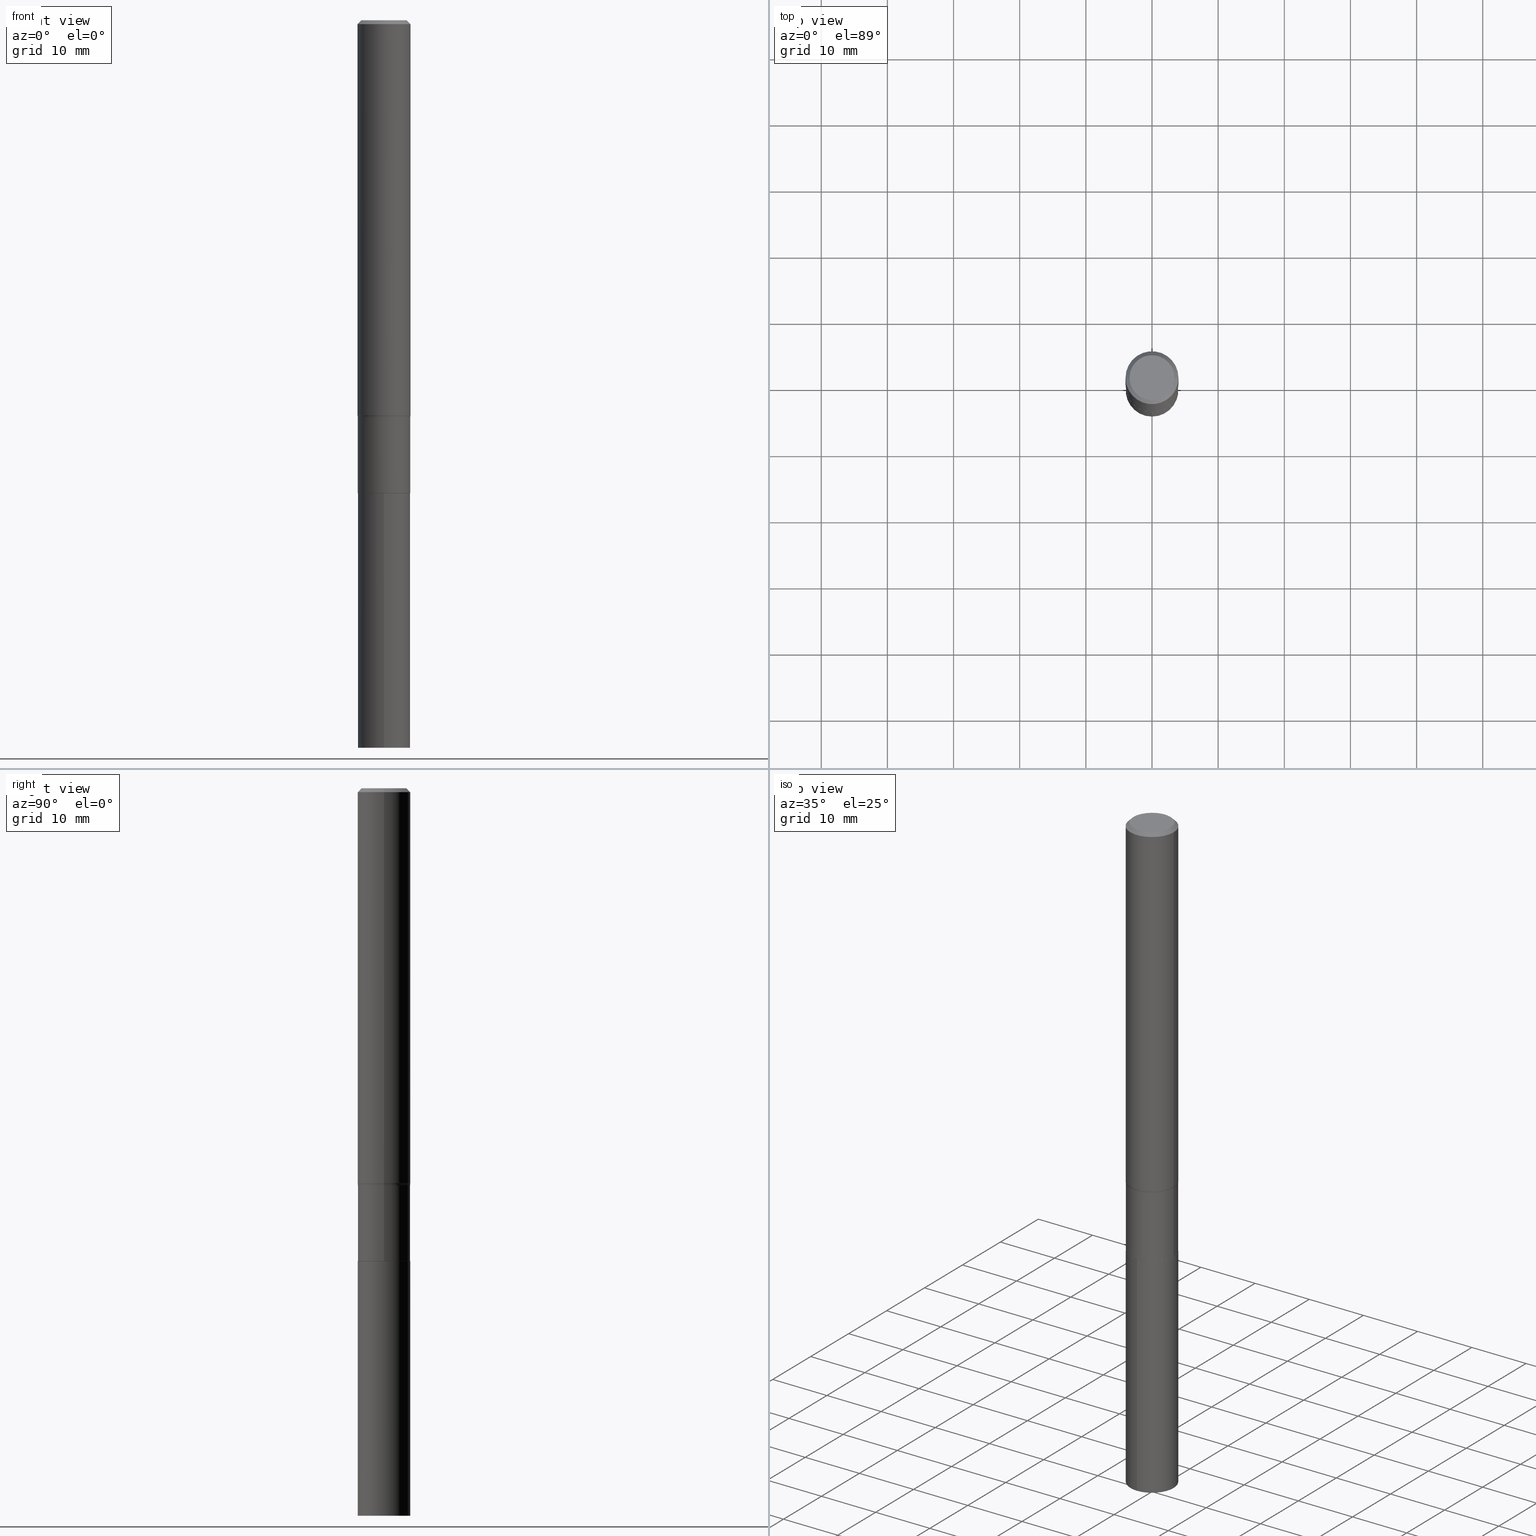
[diagram: canonical four-view strip — front | top / right | iso, engineering-drawing reading convention]
A machine part, canonical four-view strip (front | top / right | iso — engineering-drawing reading convention). The complete STEP part file that produces these views, byte-faithful:
ISO-10303-21;
HEADER;
FILE_DESCRIPTION (( 'STEP AP203' ),
    '1' );
FILE_NAME ('58895.STEP',
    '2024-04-19T14:48:45',
    ( '' ),
    ( '' ),
    'SwSTEP 2.0',
    'SolidWorks 2023',
    '' );
FILE_SCHEMA (( 'CONFIG_CONTROL_DESIGN' ));
ENDSEC;

DATA;
#1 = ORIENTED_EDGE ( 'NONE', *, *, #207, .F. ) ;
#2 = ORIENTED_EDGE ( 'NONE', *, *, #23, .T. ) ;
#3 = CIRCLE ( 'NONE', #120, 0.1575000000000003064 ) ;
#4 = APPLICATION_PROTOCOL_DEFINITION ( 'international standard', 'config_control_design', 1994, #368 ) ;
#5 = SECURITY_CLASSIFICATION_LEVEL ( 'unclassified' ) ;
#6 = ORIENTED_EDGE ( 'NONE', *, *, #52, .T. ) ;
#7 = CALENDAR_DATE ( 2024, 19, 4 ) ;
#8 = EDGE_CURVE ( 'NONE', #157, #184, #382, .T. ) ;
#9 = VERTEX_POINT ( 'NONE', #51 ) ;
#10 = EDGE_CURVE ( 'NONE', #126, #303, #284, .T. ) ;
#11 = AXIS2_PLACEMENT_3D ( 'NONE', #57, #62, #133 ) ;
#12 = AXIS2_PLACEMENT_3D ( 'NONE', #328, #434, #111 ) ;
#13 = DIRECTION ( 'NONE',  ( -2.445468806185136597E-29, 3.491481338843145583E-15, 1.000000000000000000 ) ) ;
#14 = DIRECTION ( 'NONE',  ( 1.000000000000000000, -6.982962677686266711E-15, 4.876170806578254279E-29 ) ) ;
#15 = CC_DESIGN_PERSON_AND_ORGANIZATION_ASSIGNMENT ( #370, #336, ( #134 ) ) ;
#16 = CARTESIAN_POINT ( 'NONE',  ( 5.777420054612412346E-31, -8.248624663016970443E-17, -0.02362500000000010772 ) ) ;
#17 = AXIS2_PLACEMENT_3D ( 'NONE', #124, #264, #227 ) ;
#18 = DIRECTION ( 'NONE',  ( -2.445468806185136597E-29, 3.491481338843145583E-15, 1.000000000000000000 ) ) ;
#19 = AXIS2_PLACEMENT_3D ( 'NONE', #232, #386, #64 ) ;
#20 = CARTESIAN_POINT ( 'NONE',  ( 0.000000000000000000, 0.000000000000000000, 0.000000000000000000 ) ) ;
#21 = CARTESIAN_POINT ( 'NONE',  ( -1.002970424325032604E-46, 1.431975951230895391E-32, 4.101342130344482109E-18 ) ) ;
#22 = DIRECTION ( 'NONE',  ( 1.000000000000000000, -6.982962677686267499E-15, 4.876176775795935232E-29 ) ) ;
#23 = EDGE_CURVE ( 'NONE', #184, #157, #86, .T. ) ;
#24 = LINE ( 'NONE', #350, #462 ) ;
#25 = DIRECTION ( 'NONE',  ( 0.7071067811865456854, -7.319954787623249734E-15, -0.7071067811865493491 ) ) ;
#26 = AXIS2_PLACEMENT_3D ( 'NONE', #164, #201, #171 ) ;
#27 = FACE_OUTER_BOUND ( 'NONE', #440, .T. ) ;
#28 = APPROVAL_PERSON_ORGANIZATION ( #115, #31, #406 ) ;
#29 = PERSON_AND_ORGANIZATION ( #192, #96 ) ;
#30 = CARTESIAN_POINT ( 'NONE',  ( 0.1575000000000001676, -1.099816621735588269E-15, 7.679978421878606441E-30 ) ) ;
#31 = APPROVAL ( #439, 'UNSPECIFIED' ) ;
#32 = PLANE ( 'NONE',  #391 ) ;
#33 = VERTEX_POINT ( 'NONE', #119 ) ;
#34 = DIRECTION ( 'NONE',  ( -2.445468806185136877E-29, 3.491481338843145188E-15, 1.000000000000000000 ) ) ;
#35 = CONICAL_SURFACE ( 'NONE', #94, 0.1575000000000000011, 0.7853981633974457255 ) ;
#36 = EDGE_LOOP ( 'NONE', ( #441, #247, #231, #251 ) ) ;
#37 = AXIS2_PLACEMENT_3D ( 'NONE', #268, #280, #199 ) ;
#38 = DIRECTION ( 'NONE',  ( -2.445468806185136877E-29, 3.491481338843145188E-15, 1.000000000000000000 ) ) ;
#39 = ORIENTED_EDGE ( 'NONE', *, *, #300, .F. ) ;
#40 = EDGE_LOOP ( 'NONE', ( #374, #330 ) ) ;
#41 = LOCAL_TIME ( 10, 48, 45.00000000000000000, #188 ) ;
#42 = CALENDAR_DATE ( 2024, 19, 4 ) ;
#43 =( GEOMETRIC_REPRESENTATION_CONTEXT ( 3 ) GLOBAL_UNCERTAINTY_ASSIGNED_CONTEXT ( ( #257 ) ) GLOBAL_UNIT_ASSIGNED_CONTEXT ( ( #121, #85, #150 ) ) REPRESENTATION_CONTEXT ( 'NONE', 'WORKASPACE' ) );
#44 = DIRECTION ( 'NONE',  ( -2.445468806185136597E-29, 3.491481338843145583E-15, 1.000000000000000000 ) ) ;
#45 = EDGE_CURVE ( 'NONE', #72, #332, #169, .T. ) ;
#46 = COORDINATED_UNIVERSAL_TIME_OFFSET ( 5, 0, .BEHIND. ) ;
#47 = DIRECTION ( 'NONE',  ( -2.445575912217053576E-29, 3.491327956909343403E-15, 1.000000000000000000 ) ) ;
#48 = DIRECTION ( 'NONE',  ( -2.445468806185136597E-29, 3.491481338843145583E-15, 1.000000000000000000 ) ) ;
#49 = CIRCLE ( 'NONE', #419, 0.1557499999999999996 ) ;
#50 = VECTOR ( 'NONE', #25, 39.37007874015748143 ) ;
#51 = CARTESIAN_POINT ( 'NONE',  ( 0.1338749999999999940, -1.040731925365424925E-15, 4.101342130351390035E-18 ) ) ;
#52 = EDGE_CURVE ( 'NONE', #33, #221, #49, .T. ) ;
#53 = DIRECTION ( 'NONE',  ( 1.000000000000000000, -6.982962677686265922E-15, 0.000000000000000000 ) ) ;
#54 = EDGE_CURVE ( 'NONE', #9, #217, #344, .T. ) ;
#55 = DIRECTION ( 'NONE',  ( -2.445575912217053576E-29, 3.491327956909343403E-15, 1.000000000000000000 ) ) ;
#56 = AXIS2_PLACEMENT_3D ( 'NONE', #378, #48, #413 ) ;
#57 = CARTESIAN_POINT ( 'NONE',  ( 6.883261048769305453E-29, -9.827472524441804254E-15, -2.814700000000001090 ) ) ;
#58 = MANIFOLD_SOLID_BREP ( 'Body-Move/Copy2[2]', #442 ) ;
#59 = AXIS2_PLACEMENT_3D ( 'NONE', #208, #162, #415 ) ;
#60 = LINE ( 'NONE', #138, #305 ) ;
#61 = DESIGN_CONTEXT ( 'detailed design', #387, 'design' ) ;
#62 = DIRECTION ( 'NONE',  ( -2.445468806185136597E-29, 3.491481338843145583E-15, 1.000000000000000000 ) ) ;
#63 = PLANE ( 'NONE',  #287 ) ;
#64 = DIRECTION ( 'NONE',  ( 1.000000000000000000, -6.982962677686265922E-15, 0.000000000000000000 ) ) ;
#65 = FACE_OUTER_BOUND ( 'NONE', #297, .T. ) ;
#66 = CARTESIAN_POINT ( 'NONE',  ( -0.1575000000000001676, 1.119104808822158984E-15, -7.747322767151485392E-30 ) ) ;
#67 = AXIS2_PLACEMENT_3D ( 'NONE', #128, #55, #452 ) ;
#68 = CARTESIAN_POINT ( 'NONE',  ( 6.883261048769304332E-29, -9.827472524441802676E-15, -2.814700000000000646 ) ) ;
#69 = DATE_AND_TIME ( #241, #401 ) ;
#70 = CARTESIAN_POINT ( 'NONE',  ( 0.000000000000000000, 0.000000000000000000, 0.000000000000000000 ) ) ;
#71 = ORIENTED_EDGE ( 'NONE', *, *, #320, .T. ) ;
#72 = VERTEX_POINT ( 'NONE', #343 ) ;
#73 = PERSON_AND_ORGANIZATION_ROLE ( 'creator' ) ;
#74 = DIRECTION ( 'NONE',  ( -2.445468806185136597E-29, 3.491481338843145583E-15, 1.000000000000000000 ) ) ;
#75 = AXIS2_PLACEMENT_3D ( 'NONE', #411, #13, #14 ) ;
#76 = ORIENTED_EDGE ( 'NONE', *, *, #426, .T. ) ;
#77 = CIRCLE ( 'NONE', #97, 0.08000000000000000167 ) ;
#78 = ADVANCED_FACE ( 'NONE', ( #372 ), #35, .T. ) ;
#79 = DIRECTION ( 'NONE',  ( -2.445468806185136597E-29, 3.491481338843145583E-15, 1.000000000000000000 ) ) ;
#80 = EDGE_CURVE ( 'NONE', #81, #149, #132, .T. ) ;
#81 = VERTEX_POINT ( 'NONE', #334 ) ;
#82 = APPROVAL_DATE_TIME ( #294, #246 ) ;
#83 = ORIENTED_EDGE ( 'NONE', *, *, #8, .F. ) ;
#84 = DATE_AND_TIME ( #42, #353 ) ;
#85 =( NAMED_UNIT ( * ) PLANE_ANGLE_UNIT ( ) SI_UNIT ( $, .RADIAN. ) );
#86 = CIRCLE ( 'NONE', #252, 0.1575000000000000011 ) ;
#87 = CIRCLE ( 'NONE', #12, 0.1562500000000000000 ) ;
#88 = DIRECTION ( 'NONE',  ( -2.445468806185136597E-29, 3.491481338843145583E-15, 1.000000000000000000 ) ) ;
#89 = AXIS2_PLACEMENT_3D ( 'NONE', #210, #139, #461 ) ;
#90 = DIRECTION ( 'NONE',  ( -2.445468806185136597E-29, 3.491481338843145583E-15, 1.000000000000000000 ) ) ;
#91 = CARTESIAN_POINT ( 'NONE',  ( 1.598269014952904770E-31, -3.026400029001514560E-14, -4.330700000000001104 ) ) ;
#92 = ADVANCED_FACE ( 'NONE', ( #99 ), #98, .F. ) ;
#93 = DIRECTION ( 'NONE',  ( -2.445468806185136597E-29, 3.491481338843145583E-15, 1.000000000000000000 ) ) ;
#94 = AXIS2_PLACEMENT_3D ( 'NONE', #16, #307, #379 ) ;
#95 = CARTESIAN_POINT ( 'NONE',  ( -1.167599102187429524E-31, -1.970141480086787471E-14, -2.814700000000001090 ) ) ;
#96 = ORGANIZATION ( 'UNSPECIFIED', 'UNSPECIFIED', '' ) ;
#97 = AXIS2_PLACEMENT_3D ( 'NONE', #381, #348, #424 ) ;
#98 = PLANE ( 'NONE',  #177 ) ;
#99 = FACE_OUTER_BOUND ( 'NONE', #364, .T. ) ;
#100 = CC_DESIGN_SECURITY_CLASSIFICATION ( #455, ( #134 ) ) ;
#101 = DIRECTION ( 'NONE',  ( -2.445468806185136597E-29, 3.491481338843145583E-15, 1.000000000000000000 ) ) ;
#102 = CIRCLE ( 'NONE', #19, 0.1557499999999999996 ) ;
#103 = ORIENTED_EDGE ( 'NONE', *, *, #396, .F. ) ;
#104 = VERTEX_POINT ( 'NONE', #242 ) ;
#105 = DATE_TIME_ROLE ( 'creation_date' ) ;
#106 = CYLINDRICAL_SURFACE ( 'NONE', #186, 0.1562499999999999722 ) ;
#107 = ADVANCED_FACE ( 'NONE', ( #383 ), #345, .F. ) ;
#108 = CC_DESIGN_DATE_AND_TIME_ASSIGNMENT ( #84, #218, ( #455 ) ) ;
#109 = DIRECTION ( 'NONE',  ( -1.000000000000000000, 6.982962677686265922E-15, 0.000000000000000000 ) ) ;
#110 = ORIENTED_EDGE ( 'NONE', *, *, #233, .T. ) ;
#111 = DIRECTION ( 'NONE',  ( -6.982962677686265133E-15, -1.000000000000000000, 3.496765431890256920E-15 ) ) ;
#112 = ORIENTED_EDGE ( 'NONE', *, *, #445, .T. ) ;
#113 = VECTOR ( 'NONE', #38, 39.37007874015748143 ) ;
#114 = APPROVAL_ROLE ( '' ) ;
#115 = PERSON_AND_ORGANIZATION ( #192, #96 ) ;
#116 = EDGE_LOOP ( 'NONE', ( #400, #39, #112, #292 ) ) ;
#117 = CARTESIAN_POINT ( 'NONE',  ( 0.000000000000000000, 0.000000000000000000, 0.000000000000000000 ) ) ;
#118 = ORIENTED_EDGE ( 'NONE', *, *, #144, .F. ) ;
#119 = CARTESIAN_POINT ( 'NONE',  ( -0.1557499999999999996, -8.718152986321335833E-15, -2.814700000000001090 ) ) ;
#120 = AXIS2_PLACEMENT_3D ( 'NONE', #322, #321, #290 ) ;
#121 =( CONVERSION_BASED_UNIT ( 'INCH', #331 ) LENGTH_UNIT ( ) NAMED_UNIT ( #311 ) );
#122 = ORIENTED_EDGE ( 'NONE', *, *, #54, .T. ) ;
#123 = CC_DESIGN_PERSON_AND_ORGANIZATION_ASSIGNMENT ( #29, #458, ( #134 ) ) ;
#124 = CARTESIAN_POINT ( 'NONE',  ( 6.882038314366211531E-29, -9.825726783772380384E-15, -2.814200000000000479 ) ) ;
#125 = PRODUCT_DEFINITION_SHAPE ( 'NONE', 'NONE',  #195 ) ;
#126 = VERTEX_POINT ( 'NONE', #319 ) ;
#127 = VECTOR ( 'NONE', #289, 39.37007874015748143 ) ;
#128 = CARTESIAN_POINT ( 'NONE',  ( 6.883261048769304332E-29, -9.827472524441802676E-15, -2.814700000000000646 ) ) ;
#129 = DIRECTION ( 'NONE',  ( -2.445468806185136597E-29, 3.491481338843145583E-15, 1.000000000000000000 ) ) ;
#130 = FACE_OUTER_BOUND ( 'NONE', #404, .T. ) ;
#131 = CARTESIAN_POINT ( 'NONE',  ( 5.783044632866612545E-29, -8.256655070096271445E-15, -2.364800000000000235 ) ) ;
#132 = CIRCLE ( 'NONE', #316, 0.1575000000000003064 ) ;
#133 = DIRECTION ( 'NONE',  ( 1.000000000000000000, -6.982962677686265922E-15, 0.000000000000000000 ) ) ;
#134 = PRODUCT_DEFINITION_FORMATION_WITH_SPECIFIED_SOURCE ( 'ANY', '', #183, .NOT_KNOWN. ) ;
#135 = APPROVAL ( #392, 'UNSPECIFIED' ) ;
#136 = DIRECTION ( 'NONE',  ( 0.7071067811860403118, -2.468850131076945266E-15, 0.7071067811870545006 ) ) ;
#137 = CC_DESIGN_PERSON_AND_ORGANIZATION_ASSIGNMENT ( #153, #373, ( #455 ) ) ;
#138 = CARTESIAN_POINT ( 'NONE',  ( -1.091087918388410345E-15, -0.1562500000000098532, -2.814699999999999758 ) ) ;
#139 = DIRECTION ( 'NONE',  ( -2.445575912217053576E-29, 3.491327956909343403E-15, 1.000000000000000000 ) ) ;
#140 = AXIS2_PLACEMENT_3D ( 'NONE', #91, #454, #236 ) ;
#141 = CARTESIAN_POINT ( 'NONE',  ( -0.1575000000000000011, 1.017330375105417295E-15, -0.02362500000000010772 ) ) ;
#142 = CIRCLE ( 'NONE', #333, 0.1562499999999999445 ) ;
#143 = ORIENTED_EDGE ( 'NONE', *, *, #10, .F. ) ;
#144 = EDGE_CURVE ( 'NONE', #437, #104, #359, .T. ) ;
#145 = DIRECTION ( 'NONE',  ( 1.000000000000000000, -6.982962677686265133E-15, 0.000000000000000000 ) ) ;
#146 = ORIENTED_EDGE ( 'NONE', *, *, #207, .T. ) ;
#147 = DIRECTION ( 'NONE',  ( 2.445468806185136597E-29, -3.491481338843145583E-15, -1.000000000000000000 ) ) ;
#148 = ADVANCED_FACE ( 'NONE', ( #27 ), #198, .T. ) ;
#149 = VERTEX_POINT ( 'NONE', #276 ) ;
#150 =( NAMED_UNIT ( * ) SI_UNIT ( $, .STERADIAN. ) SOLID_ANGLE_UNIT ( ) );
#151 = VERTEX_POINT ( 'NONE', #197 ) ;
#152 = VECTOR ( 'NONE', #459, 39.37007874015748143 ) ;
#153 = PERSON_AND_ORGANIZATION ( #192, #96 ) ;
#154 = ADVANCED_FACE ( 'NONE', ( #240 ), #234, .T. ) ;
#155 = CARTESIAN_POINT ( 'NONE',  ( 5.777420054612412346E-31, -8.248624663016970443E-17, -0.02362500000000010772 ) ) ;
#156 = CIRCLE ( 'NONE', #259, 0.1562500000000000000 ) ;
#157 = VERTEX_POINT ( 'NONE', #457 ) ;
#158 = TOROIDAL_SURFACE ( 'NONE', #191, 0.2362499999999999323, 0.08000000000000000167 ) ;
#159 = ORIENTED_EDGE ( 'NONE', *, *, #376, .F. ) ;
#160 = EDGE_CURVE ( 'NONE', #221, #126, #24, .T. ) ;
#161 = ORIENTED_EDGE ( 'NONE', *, *, #389, .F. ) ;
#162 = DIRECTION ( 'NONE',  ( 7.105427357601001859E-15, 1.000000000000000000, -3.491481338843145583E-15 ) ) ;
#163 = CC_DESIGN_APPROVAL ( #31, ( #195 ) ) ;
#164 = CARTESIAN_POINT ( 'NONE',  ( 6.883261048769304332E-29, -9.827472524441802676E-15, -2.814700000000000646 ) ) ;
#165 = DIRECTION ( 'NONE',  ( 6.982962677686265922E-15, 1.000000000000000000, -3.491327956909343403E-15 ) ) ;
#166 =( LENGTH_UNIT ( ) NAMED_UNIT ( * ) SI_UNIT ( $, .METRE. ) );
#167 = DIRECTION ( 'NONE',  ( 1.000000000000000000, -6.982962677686265922E-15, 4.876176775795935793E-29 ) ) ;
#168 = CARTESIAN_POINT ( 'NONE',  ( -0.1562499999999999722, 1.110223024625156343E-15, -7.685836078523288357E-30 ) ) ;
#169 = CIRCLE ( 'NONE', #399, 0.1562500000000000000 ) ;
#170 = COORDINATED_UNIVERSAL_TIME_OFFSET ( 5, 0, .BEHIND. ) ;
#171 = DIRECTION ( 'NONE',  ( -6.982962677686265133E-15, -1.000000000000000000, 3.496765431890256920E-15 ) ) ;
#172 = CARTESIAN_POINT ( 'NONE',  ( 0.000000000000000000, 0.000000000000000000, 0.000000000000000000 ) ) ;
#173 = DIRECTION ( 'NONE',  ( 1.000000000000000000, -6.982962677686266711E-15, 4.876176775795936353E-29 ) ) ;
#174 = DIRECTION ( 'NONE',  ( -2.445575912217053576E-29, 3.491327956909343403E-15, 1.000000000000000000 ) ) ;
#175 = CARTESIAN_POINT ( 'NONE',  ( 5.777420054612412346E-31, -8.248624663016970443E-17, -0.02362500000000010772 ) ) ;
#176 = ORIENTED_EDGE ( 'NONE', *, *, #283, .F. ) ;
#177 = AXIS2_PLACEMENT_3D ( 'NONE', #95, #267, #167 ) ;
#178 = FACE_OUTER_BOUND ( 'NONE', #261, .T. ) ;
#179 = AXIS2_PLACEMENT_3D ( 'NONE', #428, #129, #317 ) ;
#180 = EDGE_LOOP ( 'NONE', ( #410, #245, #182, #214 ) ) ;
#181 = DIRECTION ( 'NONE',  ( 1.000000000000000000, -6.982962677686266711E-15, 4.876176775795936353E-29 ) ) ;
#182 = ORIENTED_EDGE ( 'NONE', *, *, #389, .T. ) ;
#183 = PRODUCT ( '58895', '58895', '', ( #339 ) ) ;
#184 = VERTEX_POINT ( 'NONE', #279 ) ;
#185 = VERTEX_POINT ( 'NONE', #423 ) ;
#186 = AXIS2_PLACEMENT_3D ( 'NONE', #70, #79, #173 ) ;
#187 = DIRECTION ( 'NONE',  ( 1.000000000000000000, -6.982962677686272233E-15, 0.000000000000000000 ) ) ;
#188 = COORDINATED_UNIVERSAL_TIME_OFFSET ( 5, 0, .BEHIND. ) ;
#189 = ORIENTED_EDGE ( 'NONE', *, *, #426, .F. ) ;
#190 = SHAPE_DEFINITION_REPRESENTATION ( #125, #278 ) ;
#191 = AXIS2_PLACEMENT_3D ( 'NONE', #213, #101, #358 ) ;
#192 = PERSON ( 'UNSPECIFIED', 'UNSPECIFIED', 'UNSPECIFIED', ('UNSPECIFIED'), ('UNSPECIFIED'), ('UNSPECIFIED') ) ;
#193 = DIRECTION ( 'NONE',  ( 1.000000000000000000, -6.982962677686265922E-15, 0.000000000000000000 ) ) ;
#194 = CARTESIAN_POINT ( 'NONE',  ( 6.883261048769304332E-29, -9.827472524441802676E-15, -2.814700000000000646 ) ) ;
#195 = PRODUCT_DEFINITION ( 'UNKNOWN', '', #134, #61 ) ;
#196 = EDGE_CURVE ( 'NONE', #151, #185, #156, .T. ) ;
#197 = CARTESIAN_POINT ( 'NONE',  ( -1.091087918388373072E-15, -0.1562500000000151268, -4.330700000000000216 ) ) ;
#198 = CONICAL_SURFACE ( 'NONE', #11, 0.1557499999999999996, 0.7853981633967311859 ) ;
#199 = DIRECTION ( 'NONE',  ( 1.000000000000000000, -6.982962677686269077E-15, 4.883557194083113462E-29 ) ) ;
#200 = APPROVAL_PERSON_ORGANIZATION ( #204, #135, #248 ) ;
#201 = DIRECTION ( 'NONE',  ( -2.445575912217053576E-29, 3.491327956909343403E-15, 1.000000000000000000 ) ) ;
#202 = DIRECTION ( 'NONE',  ( -2.445468806185136597E-29, 3.491481338843145583E-15, 1.000000000000000000 ) ) ;
#203 = LINE ( 'NONE', #420, #443 ) ;
#204 = PERSON_AND_ORGANIZATION ( #192, #96 ) ;
#205 = EDGE_CURVE ( 'NONE', #303, #104, #314, .T. ) ;
#206 = FACE_OUTER_BOUND ( 'NONE', #285, .T. ) ;
#207 = EDGE_CURVE ( 'NONE', #81, #184, #315, .T. ) ;
#208 = CARTESIAN_POINT ( 'NONE',  ( -0.2362499999999999323, -6.577997856863035829E-15, -2.364800000000000235 ) ) ;
#209 = AXIS2_PLACEMENT_3D ( 'NONE', #21, #449, #347 ) ;
#210 = CARTESIAN_POINT ( 'NONE',  ( 1.059075413169035979E-28, -1.512032570711636875E-14, -4.330700000000001104 ) ) ;
#211 = EDGE_CURVE ( 'NONE', #81, #104, #337, .T. ) ;
#212 = ORIENTED_EDGE ( 'NONE', *, *, #80, .T. ) ;
#213 = CARTESIAN_POINT ( 'NONE',  ( 5.783044632866612545E-29, -8.256655070096271445E-15, -2.364800000000000235 ) ) ;
#214 = ORIENTED_EDGE ( 'NONE', *, *, #291, .F. ) ;
#215 = CYLINDRICAL_SURFACE ( 'NONE', #421, 0.1562499999999999722 ) ;
#216 = AXIS2_PLACEMENT_3D ( 'NONE', #117, #302, #228 ) ;
#217 = VERTEX_POINT ( 'NONE', #453 ) ;
#218 = DATE_TIME_ROLE ( 'classification_date' ) ;
#219 = CARTESIAN_POINT ( 'NONE',  ( 0.1575000000000000011, -1.163014681279185964E-15, -0.02362500000000010772 ) ) ;
#220 = MANIFOLD_SOLID_BREP ( 'Body-Move/Copy2[1]', #301 ) ;
#221 = VERTEX_POINT ( 'NONE', #380 ) ;
#222 = PERSON_AND_ORGANIZATION ( #192, #96 ) ;
#223 = EDGE_LOOP ( 'NONE', ( #326, #342 ) ) ;
#224 = ORIENTED_EDGE ( 'NONE', *, *, #327, .F. ) ;
#225 = CC_DESIGN_APPROVAL ( #135, ( #134 ) ) ;
#226 = PERSON_AND_ORGANIZATION ( #192, #96 ) ;
#227 = DIRECTION ( 'NONE',  ( 1.000000000000000000, -6.982962677686262766E-15, 0.000000000000000000 ) ) ;
#228 = DIRECTION ( 'NONE',  ( 1.000000000000000000, 0.000000000000000000, 0.000000000000000000 ) ) ;
#229 = ORIENTED_EDGE ( 'NONE', *, *, #211, .T. ) ;
#230 = AXIS2_PLACEMENT_3D ( 'NONE', #20, #384, #422 ) ;
#231 = ORIENTED_EDGE ( 'NONE', *, *, #8, .T. ) ;
#232 = CARTESIAN_POINT ( 'NONE',  ( 6.883261048769305453E-29, -9.827472524441804254E-15, -2.814700000000001090 ) ) ;
#233 = EDGE_CURVE ( 'NONE', #221, #33, #102, .T. ) ;
#234 = CYLINDRICAL_SURFACE ( 'NONE', #26, 0.1562500000000000000 ) ;
#235 = AXIS2_PLACEMENT_3D ( 'NONE', #175, #147, #109 ) ;
#236 = DIRECTION ( 'NONE',  ( -6.982962677686265922E-15, -1.000000000000000000, 3.491327956909343403E-15 ) ) ;
#237 = PRODUCT_RELATED_PRODUCT_CATEGORY ( 'detail', '', ( #183 ) ) ;
#238 = EDGE_CURVE ( 'NONE', #33, #303, #203, .T. ) ;
#239 = COORDINATED_UNIVERSAL_TIME_OFFSET ( 5, 0, .BEHIND. ) ;
#240 = FACE_OUTER_BOUND ( 'NONE', #360, .T. ) ;
#241 = CALENDAR_DATE ( 2024, 19, 4 ) ;
#242 = CARTESIAN_POINT ( 'NONE',  ( -0.1562499999999999445, -7.930967902309169374E-15, -2.364800000000000235 ) ) ;
#243 = CYLINDRICAL_SURFACE ( 'NONE', #230, 0.1575000000000001676 ) ;
#244 = CARTESIAN_POINT ( 'NONE',  ( 5.783044632866612545E-29, -8.256655070096271445E-15, -2.364800000000000235 ) ) ;
#245 = ORIENTED_EDGE ( 'NONE', *, *, #397, .T. ) ;
#246 = APPROVAL ( #365, 'UNSPECIFIED' ) ;
#247 = ORIENTED_EDGE ( 'NONE', *, *, #396, .T. ) ;
#248 = APPROVAL_ROLE ( '' ) ;
#249 = CARTESIAN_POINT ( 'NONE',  ( -1.091087918388410345E-15, -0.1562500000000098532, -2.814699999999999758 ) ) ;
#250 = CARTESIAN_POINT ( 'NONE',  ( 0.1562499999999999722, -1.091087918388478976E-15, 7.619026212181148976E-30 ) ) ;
#251 = ORIENTED_EDGE ( 'NONE', *, *, #320, .F. ) ;
#252 = AXIS2_PLACEMENT_3D ( 'NONE', #155, #90, #53 ) ;
#253 = LINE ( 'NONE', #219, #50 ) ;
#254 = VECTOR ( 'NONE', #34, 39.37007874015748143 ) ;
#255 = ORIENTED_EDGE ( 'NONE', *, *, #205, .T. ) ;
#256 = PERSON_AND_ORGANIZATION_ROLE ( 'design_owner' ) ;
#257 = UNCERTAINTY_MEASURE_WITH_UNIT (LENGTH_MEASURE( 1.000000000000000082E-05 ), #121, 'distance_accuracy_value', 'NONE');
#258 = ORIENTED_EDGE ( 'NONE', *, *, #327, .T. ) ;
#259 = AXIS2_PLACEMENT_3D ( 'NONE', #390, #385, #269 ) ;
#260 = EDGE_CURVE ( 'NONE', #217, #9, #266, .T. ) ;
#261 = EDGE_LOOP ( 'NONE', ( #288, #122 ) ) ;
#262 = CONICAL_SURFACE ( 'NONE', #296, 0.1557499999999999996, 0.7853981633967311859 ) ;
#263 = ADVANCED_FACE ( 'NONE', ( #206 ), #352, .T. ) ;
#264 = DIRECTION ( 'NONE',  ( -2.445468806185136597E-29, 3.491481338843145583E-15, 1.000000000000000000 ) ) ;
#265 = EDGE_LOOP ( 'NONE', ( #394, #255, #118, #161 ) ) ;
#266 = CIRCLE ( 'NONE', #209, 0.1338749999999999940 ) ;
#267 = DIRECTION ( 'NONE',  ( -2.438088387897960049E-29, 3.491481338843145188E-15, 1.000000000000000000 ) ) ;
#268 = CARTESIAN_POINT ( 'NONE',  ( 5.783044632866612545E-29, -8.256655070096271445E-15, -2.364800000000000235 ) ) ;
#269 = DIRECTION ( 'NONE',  ( -6.982962677686265133E-15, -1.000000000000000000, 3.496765431890256920E-15 ) ) ;
#270 = FACE_OUTER_BOUND ( 'NONE', #468, .T. ) ;
#271 = DIRECTION ( 'NONE',  ( 1.000000000000000000, -6.982962677686265922E-15, 0.000000000000000000 ) ) ;
#272 = ADVANCED_FACE ( 'NONE', ( #130 ), #262, .T. ) ;
#273 = VECTOR ( 'NONE', #310, 39.37007874015748143 ) ;
#274 = FACE_OUTER_BOUND ( 'NONE', #433, .T. ) ;
#275 = LOCAL_TIME ( 10, 48, 45.00000000000000000, #377 ) ;
#276 = CARTESIAN_POINT ( 'NONE',  ( 0.1575000000000003064, -9.307287946322105825E-15, -2.350713215413017476 ) ) ;
#277 = ADVANCED_FACE ( 'NONE', ( #465 ), #318, .T. ) ;
#278 = ADVANCED_BREP_SHAPE_REPRESENTATION ( '58895', ( #220, #58, #216 ), #43 ) ;
#279 = CARTESIAN_POINT ( 'NONE',  ( -0.1575000000000000011, -3.025873976786183506E-15, -0.02362500000000010772 ) ) ;
#280 = DIRECTION ( 'NONE',  ( -2.445468806185136597E-29, 3.491481338843145583E-15, 1.000000000000000000 ) ) ;
#281 = DATE_AND_TIME ( #464, #341 ) ;
#282 = LINE ( 'NONE', #141, #127 ) ;
#283 = EDGE_CURVE ( 'NONE', #185, #72, #286, .T. ) ;
#284 = CIRCLE ( 'NONE', #17, 0.1562500000000000000 ) ;
#285 = EDGE_LOOP ( 'NONE', ( #176, #363, #76, #304 ) ) ;
#286 = LINE ( 'NONE', #398, #152 ) ;
#287 = AXIS2_PLACEMENT_3D ( 'NONE', #68, #456, #165 ) ;
#288 = ORIENTED_EDGE ( 'NONE', *, *, #260, .T. ) ;
#289 = DIRECTION ( 'NONE',  ( -0.7071067811865456854, 2.468850131082237733E-15, -0.7071067811865493491 ) ) ;
#290 = DIRECTION ( 'NONE',  ( 1.000000000000000000, -6.982962677686272233E-15, 0.000000000000000000 ) ) ;
#291 = EDGE_CURVE ( 'NONE', #104, #437, #142, .T. ) ;
#292 = ORIENTED_EDGE ( 'NONE', *, *, #144, .T. ) ;
#293 = VECTOR ( 'NONE', #427, 39.37007874015748143 ) ;
#294 = DATE_AND_TIME ( #7, #41 ) ;
#295 = APPLICATION_PROTOCOL_DEFINITION ( 'international standard', 'config_control_design', 1994, #387 ) ;
#296 = AXIS2_PLACEMENT_3D ( 'NONE', #417, #93, #271 ) ;
#297 = EDGE_LOOP ( 'NONE', ( #407, #146, #83, #224 ) ) ;
#298 = CARTESIAN_POINT ( 'NONE',  ( 5.748595840579696355E-29, -8.207471324586519134E-15, -2.350713215413017476 ) ) ;
#299 = ORIENTED_EDGE ( 'NONE', *, *, #160, .F. ) ;
#300 = EDGE_CURVE ( 'NONE', #149, #81, #3, .T. ) ;
#301 = CLOSED_SHELL ( 'NONE', ( #154, #107, #263, #416 ) ) ;
#302 = DIRECTION ( 'NONE',  ( 0.000000000000000000, 0.000000000000000000, 1.000000000000000000 ) ) ;
#303 = VERTEX_POINT ( 'NONE', #393 ) ;
#304 = ORIENTED_EDGE ( 'NONE', *, *, #45, .F. ) ;
#305 = VECTOR ( 'NONE', #174, 39.37007874015748143 ) ;
#306 = ORIENTED_EDGE ( 'NONE', *, *, #283, .T. ) ;
#307 = DIRECTION ( 'NONE',  ( 2.445468806185136597E-29, -3.491481338843145583E-15, -1.000000000000000000 ) ) ;
#308 = CC_DESIGN_APPROVAL ( #246, ( #455 ) ) ;
#309 = DIRECTION ( 'NONE',  ( -0.7071067811860403118, 7.493145998868519270E-15, 0.7071067811870545006 ) ) ;
#310 = DIRECTION ( 'NONE',  ( -2.445468806185136877E-29, 3.491481338843145188E-15, 1.000000000000000000 ) ) ;
#311 = DIMENSIONAL_EXPONENTS ( 1.000000000000000000, 0.000000000000000000, 0.000000000000000000, 0.000000000000000000, 0.000000000000000000, 0.000000000000000000, 0.000000000000000000 ) ;
#312 = EDGE_CURVE ( 'NONE', #185, #151, #325, .T. ) ;
#313 = CALENDAR_DATE ( 2024, 19, 4 ) ;
#314 = LINE ( 'NONE', #168, #293 ) ;
#315 = LINE ( 'NONE', #66, #273 ) ;
#316 = AXIS2_PLACEMENT_3D ( 'NONE', #298, #44, #187 ) ;
#317 = DIRECTION ( 'NONE',  ( 1.000000000000000000, -6.982962677686262766E-15, 0.000000000000000000 ) ) ;
#318 = CONICAL_SURFACE ( 'NONE', #235, 0.1575000000000000011, 0.7853981633974457255 ) ;
#319 = CARTESIAN_POINT ( 'NONE',  ( 0.1562500000000000000, -1.091681470216085877E-14, -2.814200000000000479 ) ) ;
#320 = EDGE_CURVE ( 'NONE', #217, #184, #282, .T. ) ;
#321 = DIRECTION ( 'NONE',  ( -2.445468806185136597E-29, 3.491481338843145583E-15, 1.000000000000000000 ) ) ;
#322 = CARTESIAN_POINT ( 'NONE',  ( 5.748595840579696355E-29, -8.207471324586519134E-15, -2.350713215413017476 ) ) ;
#323 = ORIENTED_EDGE ( 'NONE', *, *, #291, .T. ) ;
#324 = DIRECTION ( 'NONE',  ( -1.000000000000000000, 6.982962677686265922E-15, -4.876176775795935793E-29 ) ) ;
#325 = CIRCLE ( 'NONE', #89, 0.1562500000000000000 ) ;
#326 = ORIENTED_EDGE ( 'NONE', *, *, #376, .T. ) ;
#327 = EDGE_CURVE ( 'NONE', #149, #157, #467, .T. ) ;
#328 = CARTESIAN_POINT ( 'NONE',  ( 6.883261048769304332E-29, -9.827472524441802676E-15, -2.814700000000000646 ) ) ;
#329 = ADVANCED_FACE ( 'NONE', ( #432 ), #106, .T. ) ;
#330 = ORIENTED_EDGE ( 'NONE', *, *, #312, .F. ) ;
#331 = LENGTH_MEASURE_WITH_UNIT ( LENGTH_MEASURE( 0.02539999999999999897 ), #166 );
#332 = VERTEX_POINT ( 'NONE', #249 ) ;
#333 = AXIS2_PLACEMENT_3D ( 'NONE', #244, #74, #145 ) ;
#334 = CARTESIAN_POINT ( 'NONE',  ( -0.1575000000000003064, -7.088366515764358375E-15, -2.350713215413017476 ) ) ;
#335 = ORIENTED_EDGE ( 'NONE', *, *, #160, .T. ) ;
#336 = PERSON_AND_ORGANIZATION_ROLE ( 'design_supplier' ) ;
#337 = CIRCLE ( 'NONE', #59, 0.08000000000000000167 ) ;
#338 = ADVANCED_FACE ( 'NONE', ( #429 ), #215, .T. ) ;
#339 = MECHANICAL_CONTEXT ( 'NONE', #368, 'mechanical' ) ;
#340 = ORIENTED_EDGE ( 'NONE', *, *, #52, .F. ) ;
#341 = LOCAL_TIME ( 10, 48, 45.00000000000000000, #239 ) ;
#342 = ORIENTED_EDGE ( 'NONE', *, *, #45, .T. ) ;
#343 = CARTESIAN_POINT ( 'NONE',  ( 1.110223024625262642E-15, 0.1562499999999901745, -2.814700000000001090 ) ) ;
#344 = CIRCLE ( 'NONE', #75, 0.1338749999999999940 ) ;
#345 = PLANE ( 'NONE',  #140 ) ;
#346 = CYLINDRICAL_SURFACE ( 'NONE', #430, 0.1575000000000001676 ) ;
#347 = DIRECTION ( 'NONE',  ( 1.000000000000000000, -6.982962677686266711E-15, 4.876170806578254279E-29 ) ) ;
#348 = DIRECTION ( 'NONE',  ( -6.982962677686266711E-15, -1.000000000000000000, 3.491481338843145583E-15 ) ) ;
#349 = ORIENTED_EDGE ( 'NONE', *, *, #445, .F. ) ;
#350 = CARTESIAN_POINT ( 'NONE',  ( 0.1557499999999999996, -1.091506896149144121E-14, -2.814700000000001090 ) ) ;
#351 = CC_DESIGN_PERSON_AND_ORGANIZATION_ASSIGNMENT ( #222, #256, ( #183 ) ) ;
#352 = CYLINDRICAL_SURFACE ( 'NONE', #67, 0.1562500000000000000 ) ;
#353 = LOCAL_TIME ( 10, 48, 45.00000000000000000, #46 ) ;
#354 = APPROVAL_DATE_TIME ( #69, #135 ) ;
#355 = DIRECTION ( 'NONE',  ( 1.000000000000000000, -6.982962677686265133E-15, 0.000000000000000000 ) ) ;
#356 = DIRECTION ( 'NONE',  ( -2.445468806185136597E-29, 3.491481338843145583E-15, 1.000000000000000000 ) ) ;
#357 = ORIENTED_EDGE ( 'NONE', *, *, #238, .T. ) ;
#358 = DIRECTION ( 'NONE',  ( 1.000000000000000000, -6.982962677686269077E-15, 4.883557194083113462E-29 ) ) ;
#359 = CIRCLE ( 'NONE', #408, 0.1562499999999999445 ) ;
#360 = EDGE_LOOP ( 'NONE', ( #446, #306, #159, #189 ) ) ;
#361 = ADVANCED_FACE ( 'NONE', ( #362 ), #158, .F. ) ;
#362 = FACE_OUTER_BOUND ( 'NONE', #116, .T. ) ;
#363 = ORIENTED_EDGE ( 'NONE', *, *, #312, .T. ) ;
#364 = EDGE_LOOP ( 'NONE', ( #371, #340 ) ) ;
#365 = APPROVAL_STATUS ( 'not_yet_approved' ) ;
#366 = ADVANCED_FACE ( 'NONE', ( #178 ), #32, .F. ) ;
#367 = CARTESIAN_POINT ( 'NONE',  ( -5.014852121625163022E-47, 7.159879756154476955E-33, 2.050671065172241055E-18 ) ) ;
#368 = APPLICATION_CONTEXT ( 'configuration controlled 3d designs of mechanical parts and assemblies' ) ;
#369 = ORIENTED_EDGE ( 'NONE', *, *, #238, .F. ) ;
#370 = PERSON_AND_ORGANIZATION ( #192, #96 ) ;
#371 = ORIENTED_EDGE ( 'NONE', *, *, #233, .F. ) ;
#372 = FACE_OUTER_BOUND ( 'NONE', #466, .T. ) ;
#373 = PERSON_AND_ORGANIZATION_ROLE ( 'classification_officer' ) ;
#374 = ORIENTED_EDGE ( 'NONE', *, *, #196, .F. ) ;
#375 = ORIENTED_EDGE ( 'NONE', *, *, #80, .F. ) ;
#376 = EDGE_CURVE ( 'NONE', #332, #72, #87, .T. ) ;
#377 = COORDINATED_UNIVERSAL_TIME_OFFSET ( 5, 0, .BEHIND. ) ;
#378 = CARTESIAN_POINT ( 'NONE',  ( 5.777420054612412346E-31, -8.248624663016970443E-17, -0.02362500000000010772 ) ) ;
#379 = DIRECTION ( 'NONE',  ( -1.000000000000000000, 6.982962677686265922E-15, 0.000000000000000000 ) ) ;
#380 = CARTESIAN_POINT ( 'NONE',  ( 0.1557499999999999996, -1.091506896149144121E-14, -2.814700000000001090 ) ) ;
#381 = CARTESIAN_POINT ( 'NONE',  ( 0.2362499999999999323, -9.906380002699651482E-15, -2.364800000000000235 ) ) ;
#382 = CIRCLE ( 'NONE', #56, 0.1575000000000000011 ) ;
#383 = FACE_OUTER_BOUND ( 'NONE', #40, .T. ) ;
#384 = DIRECTION ( 'NONE',  ( -2.445468806185136597E-29, 3.491481338843145583E-15, 1.000000000000000000 ) ) ;
#385 = DIRECTION ( 'NONE',  ( -2.445575912217053576E-29, 3.491327956909343403E-15, 1.000000000000000000 ) ) ;
#386 = DIRECTION ( 'NONE',  ( -2.445468806185136597E-29, 3.491481338843145583E-15, 1.000000000000000000 ) ) ;
#387 = APPLICATION_CONTEXT ( 'configuration controlled 3d designs of mechanical parts and assemblies' ) ;
#388 = FACE_OUTER_BOUND ( 'NONE', #223, .T. ) ;
#389 = EDGE_CURVE ( 'NONE', #126, #437, #436, .T. ) ;
#390 = CARTESIAN_POINT ( 'NONE',  ( 1.059075413169035979E-28, -1.512032570711636875E-14, -4.330700000000001104 ) ) ;
#391 = AXIS2_PLACEMENT_3D ( 'NONE', #367, #402, #324 ) ;
#392 = APPROVAL_STATUS ( 'not_yet_approved' ) ;
#393 = CARTESIAN_POINT ( 'NONE',  ( -0.1562500000000000000, -7.930967902309169374E-15, -2.814200000000000479 ) ) ;
#394 = ORIENTED_EDGE ( 'NONE', *, *, #10, .T. ) ;
#395 = CARTESIAN_POINT ( 'NONE',  ( 0.000000000000000000, 0.000000000000000000, 0.000000000000000000 ) ) ;
#396 = EDGE_CURVE ( 'NONE', #9, #157, #253, .T. ) ;
#397 = EDGE_CURVE ( 'NONE', #303, #126, #450, .T. ) ;
#398 = CARTESIAN_POINT ( 'NONE',  ( 1.110223024625225171E-15, 0.1562499999999901745, -2.814700000000001090 ) ) ;
#399 = AXIS2_PLACEMENT_3D ( 'NONE', #194, #47, #409 ) ;
#400 = ORIENTED_EDGE ( 'NONE', *, *, #211, .F. ) ;
#401 = LOCAL_TIME ( 10, 48, 45.00000000000000000, #170 ) ;
#402 = DIRECTION ( 'NONE',  ( 2.438088387897960049E-29, -3.491481338843145188E-15, -1.000000000000000000 ) ) ;
#403 = APPROVAL_PERSON_ORGANIZATION ( #226, #246, #114 ) ;
#404 = EDGE_LOOP ( 'NONE', ( #110, #357, #143, #299 ) ) ;
#405 = ORIENTED_EDGE ( 'NONE', *, *, #260, .F. ) ;
#406 = APPROVAL_ROLE ( '' ) ;
#407 = ORIENTED_EDGE ( 'NONE', *, *, #300, .T. ) ;
#408 = AXIS2_PLACEMENT_3D ( 'NONE', #131, #18, #355 ) ;
#409 = DIRECTION ( 'NONE',  ( -6.982962677686265133E-15, -1.000000000000000000, 3.496765431890256920E-15 ) ) ;
#410 = ORIENTED_EDGE ( 'NONE', *, *, #205, .F. ) ;
#411 = CARTESIAN_POINT ( 'NONE',  ( -1.002970424325032604E-46, 1.431975951230895391E-32, 4.101342130344482109E-18 ) ) ;
#412 = ORIENTED_EDGE ( 'NONE', *, *, #23, .F. ) ;
#413 = DIRECTION ( 'NONE',  ( 1.000000000000000000, -6.982962677686265922E-15, 0.000000000000000000 ) ) ;
#414 = CC_DESIGN_PERSON_AND_ORGANIZATION_ASSIGNMENT ( #435, #73, ( #195 ) ) ;
#415 = DIRECTION ( 'NONE',  ( -1.000000000000000000, 7.105427357600997914E-15, 0.000000000000000000 ) ) ;
#416 = ADVANCED_FACE ( 'NONE', ( #388 ), #63, .F. ) ;
#417 = CARTESIAN_POINT ( 'NONE',  ( 6.883261048769305453E-29, -9.827472524441804254E-15, -2.814700000000001090 ) ) ;
#418 = CARTESIAN_POINT ( 'NONE',  ( 0.1562499999999999445, -9.347742988484751407E-15, -2.364800000000000235 ) ) ;
#419 = AXIS2_PLACEMENT_3D ( 'NONE', #444, #88, #193 ) ;
#420 = CARTESIAN_POINT ( 'NONE',  ( -0.1557499999999999996, -8.720802213495449401E-15, -2.814700000000001090 ) ) ;
#421 = AXIS2_PLACEMENT_3D ( 'NONE', #395, #356, #181 ) ;
#422 = DIRECTION ( 'NONE',  ( 1.000000000000000000, -6.982962677686267499E-15, 4.876176775795935232E-29 ) ) ;
#423 = CARTESIAN_POINT ( 'NONE',  ( 1.110223024625243710E-15, 0.1562499999999848732, -4.330700000000001104 ) ) ;
#424 = DIRECTION ( 'NONE',  ( 1.000000000000000000, -6.982962677686259611E-15, 0.000000000000000000 ) ) ;
#425 = ADVANCED_FACE ( 'NONE', ( #270 ), #438, .F. ) ;
#426 = EDGE_CURVE ( 'NONE', #151, #332, #60, .T. ) ;
#427 = DIRECTION ( 'NONE',  ( -2.445468806185136877E-29, 3.491481338843145188E-15, 1.000000000000000000 ) ) ;
#428 = CARTESIAN_POINT ( 'NONE',  ( 6.882038314366211531E-29, -9.825726783772380384E-15, -2.814200000000000479 ) ) ;
#429 = FACE_OUTER_BOUND ( 'NONE', #180, .T. ) ;
#430 = AXIS2_PLACEMENT_3D ( 'NONE', #172, #202, #22 ) ;
#431 = CC_DESIGN_DATE_AND_TIME_ASSIGNMENT ( #281, #105, ( #195 ) ) ;
#432 = FACE_OUTER_BOUND ( 'NONE', #265, .T. ) ;
#433 = EDGE_LOOP ( 'NONE', ( #1, #212, #258, #412 ) ) ;
#434 = DIRECTION ( 'NONE',  ( -2.445575912217053576E-29, 3.491327956909343403E-15, 1.000000000000000000 ) ) ;
#435 = PERSON_AND_ORGANIZATION ( #192, #96 ) ;
#436 = LINE ( 'NONE', #250, #113 ) ;
#437 = VERTEX_POINT ( 'NONE', #418 ) ;
#438 = TOROIDAL_SURFACE ( 'NONE', #37, 0.2362499999999999323, 0.08000000000000000167 ) ;
#439 = APPROVAL_STATUS ( 'not_yet_approved' ) ;
#440 = EDGE_LOOP ( 'NONE', ( #369, #6, #335, #463 ) ) ;
#441 = ORIENTED_EDGE ( 'NONE', *, *, #54, .F. ) ;
#442 = CLOSED_SHELL ( 'NONE', ( #272, #277, #451, #425, #329, #338, #361, #448, #78, #366, #92, #148 ) ) ;
#443 = VECTOR ( 'NONE', #309, 39.37007874015748854 ) ;
#444 = CARTESIAN_POINT ( 'NONE',  ( 6.883261048769305453E-29, -9.827472524441804254E-15, -2.814700000000001090 ) ) ;
#445 = EDGE_CURVE ( 'NONE', #149, #437, #77, .T. ) ;
#446 = ORIENTED_EDGE ( 'NONE', *, *, #196, .T. ) ;
#447 = DATE_AND_TIME ( #313, #275 ) ;
#448 = ADVANCED_FACE ( 'NONE', ( #274 ), #243, .T. ) ;
#449 = DIRECTION ( 'NONE',  ( -2.445468806185136597E-29, 3.491481338843145583E-15, 1.000000000000000000 ) ) ;
#450 = CIRCLE ( 'NONE', #179, 0.1562500000000000000 ) ;
#451 = ADVANCED_FACE ( 'NONE', ( #65 ), #346, .T. ) ;
#452 = DIRECTION ( 'NONE',  ( -6.982962677686265133E-15, -1.000000000000000000, 3.496765431890256920E-15 ) ) ;
#453 = CARTESIAN_POINT ( 'NONE',  ( -0.1338749999999999940, 9.760872517903331886E-16, 4.101342130337800673E-18 ) ) ;
#454 = DIRECTION ( 'NONE',  ( -2.445575912217053576E-29, 3.491327956909343403E-15, 1.000000000000000000 ) ) ;
#455 = SECURITY_CLASSIFICATION ( '', '', #5 ) ;
#456 = DIRECTION ( 'NONE',  ( 2.445575912217053576E-29, -3.491327956909343403E-15, -1.000000000000000000 ) ) ;
#457 = CARTESIAN_POINT ( 'NONE',  ( 0.1575000000000000011, -1.182302868365756679E-15, -0.02362500000000010772 ) ) ;
#458 = PERSON_AND_ORGANIZATION_ROLE ( 'creator' ) ;
#459 = DIRECTION ( 'NONE',  ( -2.445575912217053576E-29, 3.491327956909343403E-15, 1.000000000000000000 ) ) ;
#460 = APPROVAL_DATE_TIME ( #447, #31 ) ;
#461 = DIRECTION ( 'NONE',  ( -6.982962677686265133E-15, -1.000000000000000000, 3.496765431890256920E-15 ) ) ;
#462 = VECTOR ( 'NONE', #136, 39.37007874015748854 ) ;
#463 = ORIENTED_EDGE ( 'NONE', *, *, #397, .F. ) ;
#464 = CALENDAR_DATE ( 2024, 19, 4 ) ;
#465 = FACE_OUTER_BOUND ( 'NONE', #36, .T. ) ;
#466 = EDGE_LOOP ( 'NONE', ( #103, #405, #71, #2 ) ) ;
#467 = LINE ( 'NONE', #30, #254 ) ;
#468 = EDGE_LOOP ( 'NONE', ( #375, #229, #323, #349 ) ) ;
ENDSEC;
END-ISO-10303-21;
